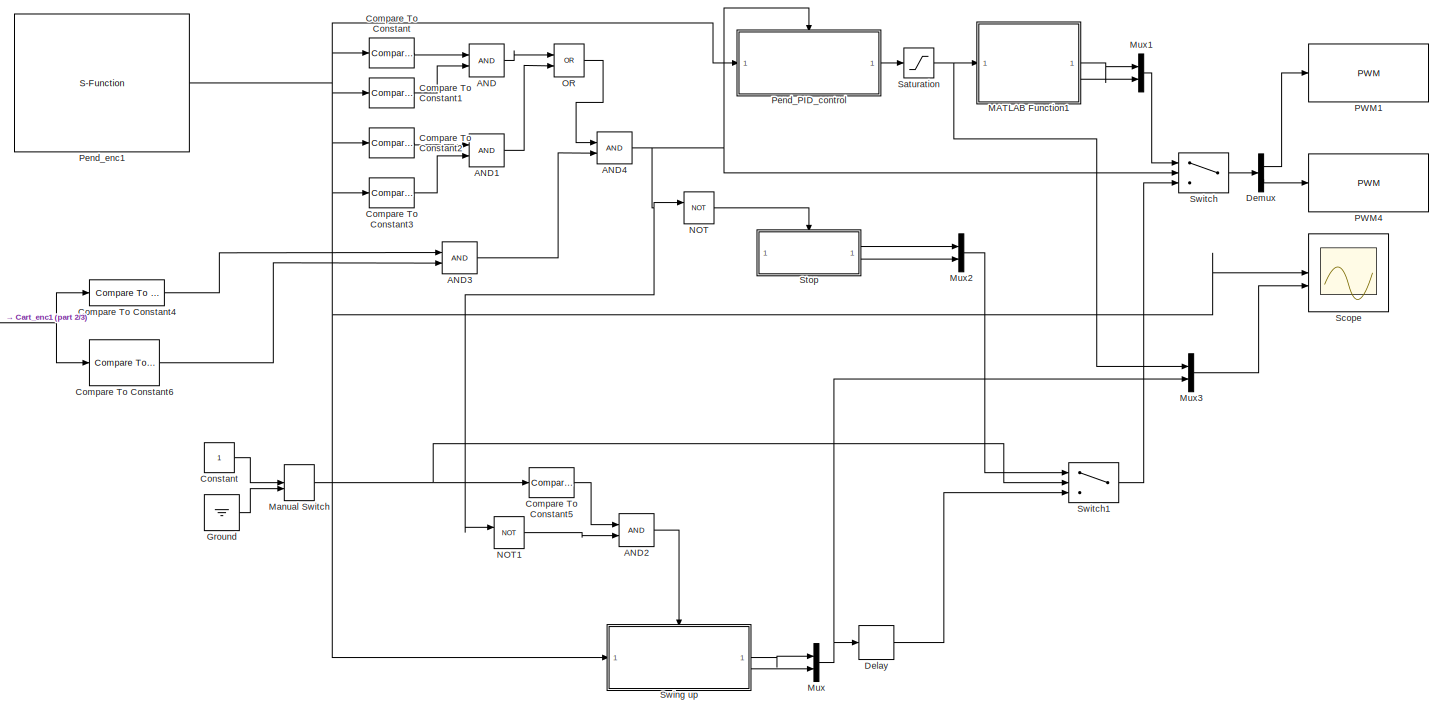
[diagram: root canvas - part 1/3, most of the canvas]
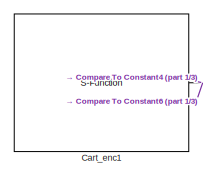
[diagram: root canvas - part 2/3, middle left region]
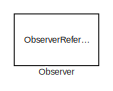
[diagram: root canvas - part 3/3, bottom left region]
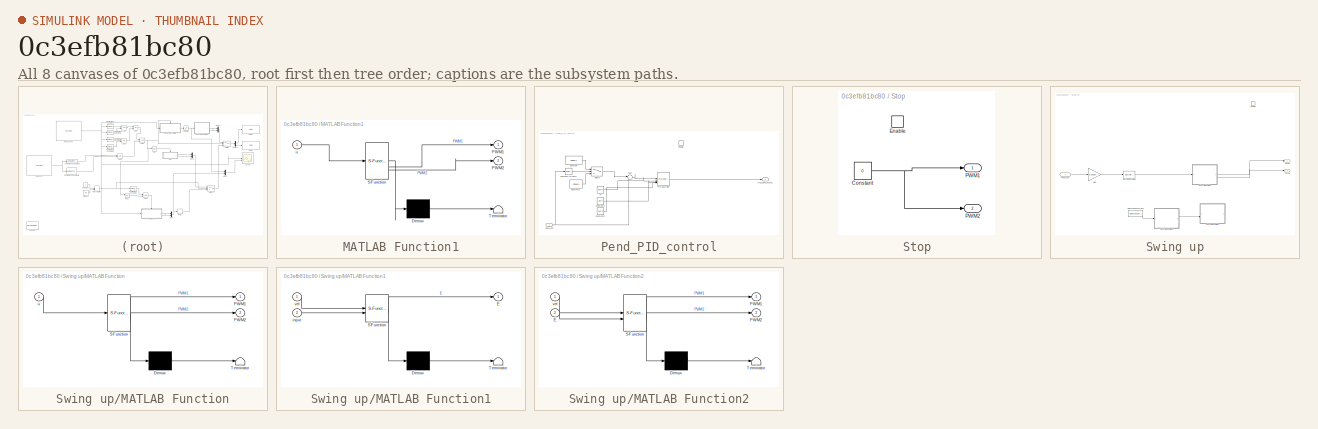
[diagram: thumbnail index - all 8 canvases of the model, root first then tree order]
MODEL slx_0c3efb81bc80
KIND model
CONFIG AbsTol = auto
CONFIG EnableMultiTasking = off
CONFIG FixedStep = 0.005
CONFIG MaxStep = auto
CONFIG MinStep = auto
CONFIG RelTol = 1e-3
CONFIG SampleTimeConstraint = Unconstrained
CONFIG SolverName = FixedStepDiscrete
CONFIG StartTime = 0.0
CONFIG StopTime = inf
BLOCK [Logic] AND
  AllPortsSameDT = off
  OutDataTypeStr = boolean
BLOCK [Logic] AND1
  AllPortsSameDT = off
  OutDataTypeStr = boolean
BLOCK [Logic] AND2
  AllPortsSameDT = off
  OutDataTypeStr = boolean
BLOCK [Logic] AND3
  AllPortsSameDT = off
  IconShape = distinctive
  OutDataTypeStr = boolean
BLOCK [Logic] AND4
  AllPortsSameDT = off
  IconShape = distinctive
  OutDataTypeStr = boolean
BLOCK [S-Function] Cart_enc1
  CopyFcn = set_param(gcbh,'LinkStatus','none')
  EnableBusSupport = off
  FunctionName = my_enc_read
  OpenFcn = sfunctionwizard(gcbh)
  Parameters = uint8(3),uint8(2),uint8(0)
  SFcnIsStateOwnerBlock = off
  SFunctionDeploymentMode = off
  SFunctionModules = my_enc_read_wrapper.c
BLOCK [Reference] Compare To Constant  REF=simulink/Logic and Bit
Operations/Compare
To Constant
  SourceBlock = simulink/Logic and Bit\nOperations/Compare\nTo Constant
  SourceType = Compare To Constant
BLOCK [Reference] Compare To Constant1  REF=simulink/Logic and Bit
Operations/Compare
To Constant
  SourceBlock = simulink/Logic and Bit\nOperations/Compare\nTo Constant
  SourceType = Compare To Constant
BLOCK [Reference] Compare To Constant2  REF=simulink/Logic and Bit
Operations/Compare
To Constant
  SourceBlock = simulink/Logic and Bit\nOperations/Compare\nTo Constant
  SourceType = Compare To Constant
BLOCK [Reference] Compare To Constant3  REF=simulink/Logic and Bit
Operations/Compare
To Constant
  SourceBlock = simulink/Logic and Bit\nOperations/Compare\nTo Constant
  SourceType = Compare To Constant
BLOCK [Reference] Compare To Constant4  REF=simulink/Logic and Bit
Operations/Compare
To Constant
  SourceBlock = simulink/Logic and Bit\nOperations/Compare\nTo Constant
  SourceType = Compare To Constant
BLOCK [Reference] Compare To Constant5  REF=simulink/Logic and Bit
Operations/Compare
To Constant
  SourceBlock = simulink/Logic and Bit\nOperations/Compare\nTo Constant
  SourceType = Compare To Constant
BLOCK [Reference] Compare To Constant6  REF=simulink/Logic and Bit
Operations/Compare
To Constant
  SourceBlock = simulink/Logic and Bit\nOperations/Compare\nTo Constant
  SourceType = Compare To Constant
BLOCK [Constant] Constant
BLOCK [Delay] Delay
  DelayLength = 60
  InputPortMap = u0
  SampleTime = 0.005
BLOCK [Demux] Demux
  Outputs = 2
BLOCK [Ground] Ground
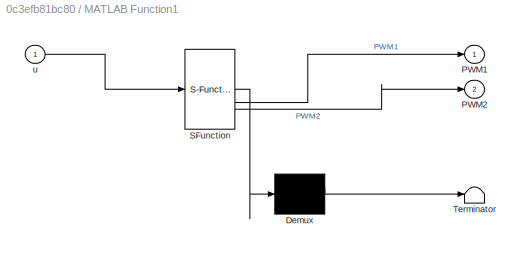
BLOCK [SubSystem] MATLAB Function1
  ErrorFcn = Stateflow.Translate.translate
  PermitHierarchicalResolution = ExplicitOnly
  SFBlockType = MATLAB Function
  TreatAsAtomicUnit = on
BLOCK [Demux] MATLAB Function1/ Demux 
  Outputs = 1
BLOCK [S-Function] MATLAB Function1/ SFunction 
  EnableBusSupport = on
  FunctionName = sf_sfun
  PortCounts = [1 3]
  SFcnIsStateOwnerBlock = off
  SFunctionDeploymentMode = off
  Tag = Stateflow S-Function 2
BLOCK [Terminator] MATLAB Function1/ Terminator 
BLOCK [Outport] MATLAB Function1/PWM1
BLOCK [Outport] MATLAB Function1/PWM2
  Port = 2
BLOCK [Inport] MATLAB Function1/u
BLOCK [ManualSwitch] Manual Switch
  CurrentSetting = 0
BLOCK [Mux] Mux
  DisplayOption = bar
  Inputs = 2
BLOCK [Mux] Mux1
  DisplayOption = bar
  Inputs = 2
BLOCK [Mux] Mux2
  DisplayOption = bar
  Inputs = 2
BLOCK [Mux] Mux3
  DisplayOption = bar
  Inputs = 2
BLOCK [Logic] NOT
  AllPortsSameDT = off
  IconShape = distinctive
  Operator = NOT
  OutDataTypeStr = boolean
BLOCK [Logic] NOT1
  AllPortsSameDT = off
  IconShape = distinctive
  Operator = NOT
  OutDataTypeStr = boolean
BLOCK [Logic] OR
  AllPortsSameDT = off
  Operator = OR
  OutDataTypeStr = boolean
BLOCK [ObserverReference] Observer
  ObserverModelName = single_PID_Inverted_pendulum_Swingup_Observer1
BLOCK [Reference] PWM1  REF=arduinolib/PWM
  SourceBlock = arduinolib/PWM
  SourceType = Arduino PWM
BLOCK [Reference] PWM4  REF=arduinolib/PWM
  SourceBlock = arduinolib/PWM
  SourceType = Arduino PWM
BLOCK [SubSystem] Pend_PID_control
  TreatAsAtomicUnit = on
BLOCK [Reference] Pend_PID_control/Compare To Zero  REF=simulink/Logic and Bit
Operations/Compare
To Zero
  SourceBlock = simulink/Logic and Bit\nOperations/Compare\nTo Zero
  SourceType = Compare To Zero
BLOCK [Constant] Pend_PID_control/Constant
  Value = 2000/4
BLOCK [Constant] Pend_PID_control/Constant1
  Value = -2000/4
BLOCK [Constant] Pend_PID_control/Constant2
  Value = Ki0*4
BLOCK [Constant] Pend_PID_control/Constant3
  Value = Kd0*4
BLOCK [EnablePort] Pend_PID_control/Enable
BLOCK [Constant] Pend_PID_control/Ki
  Value = Kp0*4
BLOCK [Reference] Pend_PID_control/PID Controller  REF=slpidlib/PID Controller
  LibrarySourceBlock = simulink/Continuous/PID Controller
  SourceBlock = slpidlib/PID Controller
  SourceType = PID 1dof
BLOCK [Outport] Pend_PID_control/PID_pend_output
BLOCK [Inport] Pend_PID_control/Pend_enc
BLOCK [Sum] Pend_PID_control/Sum
  Inputs = |+-
BLOCK [Switch] Pend_PID_control/Switch
  Criteria = u2 > Threshold
  InputSameDT = off
  SaturateOnIntegerOverflow = off
BLOCK [S-Function] Pend_enc1
  CopyFcn = set_param(gcbh,'LinkStatus','none')
  EnableBusSupport = off
  FunctionName = my_enc_read
  OpenFcn = sfunctionwizard(gcbh)
  Parameters = uint8(18),uint8(19),uint8(1)
  SFcnIsStateOwnerBlock = off
  SFunctionDeploymentMode = off
  SFunctionModules = my_enc_read_wrapper.c
BLOCK [Saturate] Saturation
  LowerLimit = -255
  UpperLimit = 255
BLOCK [Scope] Scope
  Floating = off
  NumInputPorts = 2
  ScopeSpecificationString = Simulink.scopes.TimeScopeBlockCfg('CurrentConfiguration', extmgr.ConfigurationSet(extmgr.Configuration('Core','General UI',true,'FigureColor',[1 1 1]),extmgr.Configuration('Core','Source UI',true),extmgr.Configuration('Sources','WiredSimulink',true),extmgr.Configuration('Visuals','Time Domain',true,'SerializedDisplays',{struct('MinYLimReal','-556.44172','MaxYLimReal','294.39556','YLabelReal','','M...<+2539ch>
BLOCK [SubSystem] Stop
  TreatAsAtomicUnit = on
BLOCK [Constant] Stop/Constant
  Value = 0
BLOCK [EnablePort] Stop/Enable
BLOCK [Outport] Stop/PWM1
BLOCK [Outport] Stop/PWM2
  Port = 2
BLOCK [SubSystem] Swing up
  TreatAsAtomicUnit = on
BLOCK [DataTypeConversion] Swing up/Data Type Conversion
  RndMeth = Floor
  SaturateOnIntegerOverflow = off
BLOCK [Reference] Swing up/Discrete Derivative  REF=simulink/Discrete/Discrete Derivative
  SourceBlock = simulink/Discrete/Discrete Derivative
  SourceType = Discrete Derivative
BLOCK [EnablePort] Swing up/Enable
BLOCK [Gain] Swing up/Gain
  Gain = 0.00157
BLOCK [SubSystem] Swing up/MATLAB Function
  ErrorFcn = Stateflow.Translate.translate
  PermitHierarchicalResolution = ExplicitOnly
  SFBlockType = MATLAB Function
  TreatAsAtomicUnit = on
BLOCK [Demux] Swing up/MATLAB Function/ Demux 
  Outputs = 1
BLOCK [S-Function] Swing up/MATLAB Function/ SFunction 
  EnableBusSupport = on
  FunctionName = sf_sfun
  PortCounts = [1 3]
  SFcnIsStateOwnerBlock = off
  SFunctionDeploymentMode = off
  Tag = Stateflow S-Function 1
BLOCK [Terminator] Swing up/MATLAB Function/ Terminator 
BLOCK [Outport] Swing up/MATLAB Function/PWM1
BLOCK [Outport] Swing up/MATLAB Function/PWM2
  Port = 2
BLOCK [Inport] Swing up/MATLAB Function/u
BLOCK [SubSystem] Swing up/MATLAB Function1
  ErrorFcn = Stateflow.Translate.translate
  PermitHierarchicalResolution = ExplicitOnly
  SFBlockType = MATLAB Function
  TreatAsAtomicUnit = on
BLOCK [Demux] Swing up/MATLAB Function1/ Demux 
  Outputs = 1
BLOCK [S-Function] Swing up/MATLAB Function1/ SFunction 
  EnableBusSupport = on
  FunctionName = sf_sfun
  PortCounts = [2 2]
  SFcnIsStateOwnerBlock = off
  SFunctionDeploymentMode = off
  Tag = Stateflow S-Function 3
BLOCK [Terminator] Swing up/MATLAB Function1/ Terminator 
BLOCK [Outport] Swing up/MATLAB Function1/E
BLOCK [Inport] Swing up/MATLAB Function1/input
  Port = 2
BLOCK [Inport] Swing up/MATLAB Function1/vel
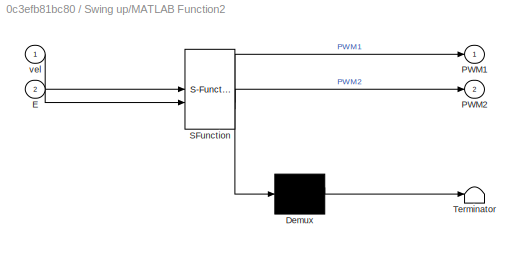
BLOCK [SubSystem] Swing up/MATLAB Function2
  ErrorFcn = Stateflow.Translate.translate
  PermitHierarchicalResolution = ExplicitOnly
  SFBlockType = MATLAB Function
  TreatAsAtomicUnit = on
BLOCK [Demux] Swing up/MATLAB Function2/ Demux 
  Outputs = 1
BLOCK [S-Function] Swing up/MATLAB Function2/ SFunction 
  EnableBusSupport = on
  FunctionName = sf_sfun
  PortCounts = [2 3]
  SFcnIsStateOwnerBlock = off
  SFunctionDeploymentMode = off
  Tag = Stateflow S-Function 4
BLOCK [Terminator] Swing up/MATLAB Function2/ Terminator 
BLOCK [Inport] Swing up/MATLAB Function2/E
  Port = 2
BLOCK [Outport] Swing up/MATLAB Function2/PWM1
BLOCK [Outport] Swing up/MATLAB Function2/PWM2
  Port = 2
BLOCK [Inport] Swing up/MATLAB Function2/vel
BLOCK [Outport] Swing up/PWM1
BLOCK [Outport] Swing up/PWM2
  Port = 2
BLOCK [Inport] Swing up/Pend_enc
BLOCK [Switch] Switch
  Criteria = u2 > Threshold
  InputSameDT = off
  SaturateOnIntegerOverflow = off
BLOCK [Switch] Switch1
  Criteria = u2 > Threshold
  InputSameDT = off
  SaturateOnIntegerOverflow = off
LINE AND1:1 -> OR:2
LINE AND2:1 -> Swing up:enable
LINE AND3:1 -> AND4:2
NET AND4:1 -> NOT1:1, NOT:1, Pend_PID_control:enable, Switch:2
LINE AND:1 -> OR:1
NET Cart_enc1:1 -> Compare To Constant4:1, Compare To Constant6:1
LINE Compare To Constant1:1 -> AND:2
LINE Compare To Constant2:1 -> AND1:1
LINE Compare To Constant3:1 -> AND1:2
LINE Compare To Constant4:1 -> AND3:1
LINE Compare To Constant5:1 -> AND2:1
LINE Compare To Constant6:1 -> AND3:2
LINE Compare To Constant:1 -> AND:1
LINE Constant:1 -> Manual Switch:1
LINE Delay:1 -> Switch1:3
LINE Demux:1 -> PWM1:1
LINE Demux:2 -> PWM4:1
LINE Ground:1 -> Manual Switch:2
LINE MATLAB Function1:1 -> Mux1:1
LINE MATLAB Function1:2 -> Mux1:2
NET Manual Switch:1 -> Compare To Constant5:1, Switch1:2
LINE Mux1:1 -> Switch:1
LINE Mux2:1 -> Switch1:1
LINE Mux3:1 -> Scope:2
NET Mux:1 -> Delay:1, Mux3:2
LINE NOT1:1 -> AND2:2
LINE NOT:1 -> Stop:enable
LINE OR:1 -> AND4:1
LINE Pend_PID_control/Compare To Zero:1 -> Pend_PID_control/Switch:2
LINE Pend_PID_control/Constant1:1 -> Pend_PID_control/Switch:3
LINE Pend_PID_control/Constant2:1 -> Pend_PID_control/PID Controller:3
LINE Pend_PID_control/Constant3:1 -> Pend_PID_control/PID Controller:4
LINE Pend_PID_control/Constant:1 -> Pend_PID_control/Switch:1
LINE Pend_PID_control/Ki:1 -> Pend_PID_control/PID Controller:2
LINE Pend_PID_control/PID Controller:1 -> Pend_PID_control/PID_pend_output:1
NET Pend_PID_control/Pend_enc:1 -> Pend_PID_control/Compare To Zero:1, Pend_PID_control/Sum:2
LINE Pend_PID_control/Sum:1 -> Pend_PID_control/PID Controller:1
LINE Pend_PID_control/Switch:1 -> Pend_PID_control/Sum:1
LINE Pend_PID_control:1 -> Saturation:1
NET Pend_enc1:1 -> Compare To Constant1:1, Compare To Constant2:1, Compare To Constant3:1, Compare To Constant:1, Pend_PID_control:1, Scope:1, Swing up:1
NET Saturation:1 -> MATLAB Function1:1, Mux3:1
NET Stop/Constant:1 -> Stop/PWM1:1, Stop/PWM2:1
LINE Stop:1 -> Mux2:1
LINE Stop:2 -> Mux2:2
LINE Swing up/Data Type Conversion:1 -> Swing up/MATLAB Function1:1
LINE Swing up/Discrete Derivative:1 -> Swing up/MATLAB Function:1
LINE Swing up/Gain:1 -> Swing up/Discrete Derivative:1
LINE Swing up/MATLAB Function1:1 -> Swing up/MATLAB Function2:2
LINE Swing up/MATLAB Function:1 -> Swing up/PWM1:1
LINE Swing up/MATLAB Function:2 -> Swing up/PWM2:1
LINE Swing up/Pend_enc:1 -> Swing up/Gain:1
LINE Swing up:1 -> Mux:1
LINE Swing up:2 -> Mux:2
LINE Switch1:1 -> Switch:3
LINE Switch:1 -> Demux:1
note: NET lines group one-source signal fan-out (src -> all destinations, sorted); 1:1 wires keep LINE
CHART Swing up/MATLAB Function states=1 transitions=1
  STATE_LABEL 'eML_blk_kernel()'
  STATE_LABEL 'SCRIPT:\nfunction [PWM1, PWM2] = fcn(u)\nif (u>0)\n  PWM1 = 40;\n  PWM2 = 0;\nelse (u<=0);\n  PWM1 = 0;\n  PWM2 = 40;\nend'
CHART MATLAB Function1 states=1 transitions=1
  STATE_LABEL 'eML_blk_kernel()'
  STATE_LABEL 'SCRIPT:\nfunction [PWM1, PWM2] = fcn(u)\nif u<0\n  PWM1 = abs(u);\n  PWM2 = 0;\nelseif u>0\n  PWM1 =0;\n  PWM2 =abs(u);\nelse u=0;\n  PWM1 = 0;\n  PWM2 = 0;\nend\n'
CHART Swing up/MATLAB Function1 states=1 transitions=1
  STATE_LABEL 'eML_blk_kernel()'
  STATE_LABEL 'SCRIPT:\nfunction E = fcn(vel,input)\nm=0.1;\nl=0.2;\ng=9.81;\nE=(1/2)*m*(l^2)*((vel)^2)+m*g*l*(1-cos(input));\n'
CHART Swing up/MATLAB Function2 states=1 transitions=1
  STATE_LABEL 'eML_blk_kernel()'
  STATE_LABEL 'SCRIPT:\nfunction [PWM1, PWM2] = fcn(vel,E)\n\nif (vel<0 && E<4.2) || (vel>=0 && E>=4.2)\n  PWM1 = 30;\n  PWM2 = 0;\nelse (vel>=0 && E<4.2) || (vel<0 && E>=4.2);\n  PWM1 = 0;\n  PWM2 = 30;\nend'
CHART  states=0 transitions=0
CHART  states=0 transitions=0
CHART  states=0 transitions=0
CHART  states=0 transitions=0
